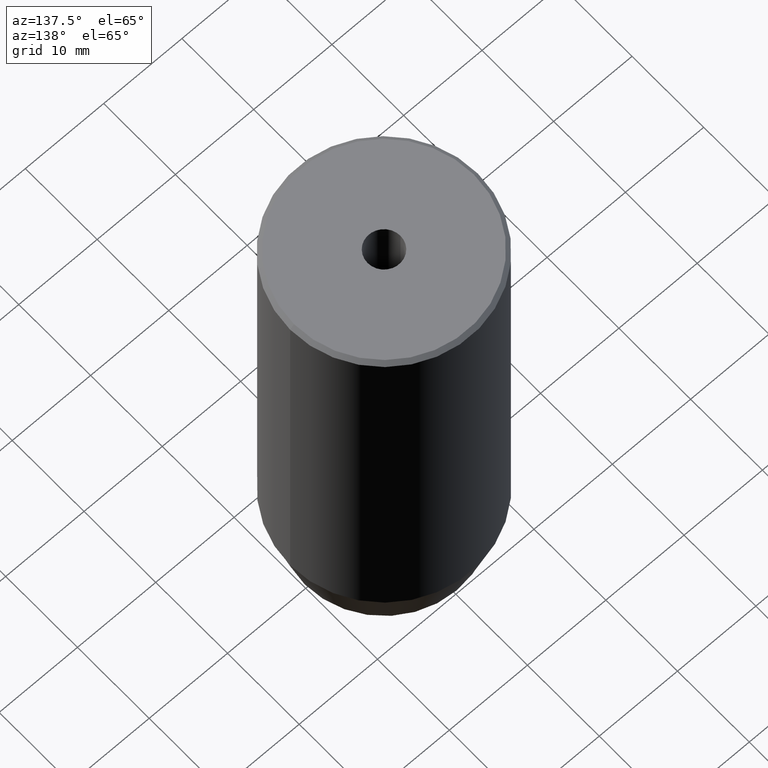
[diagram: clean part render]
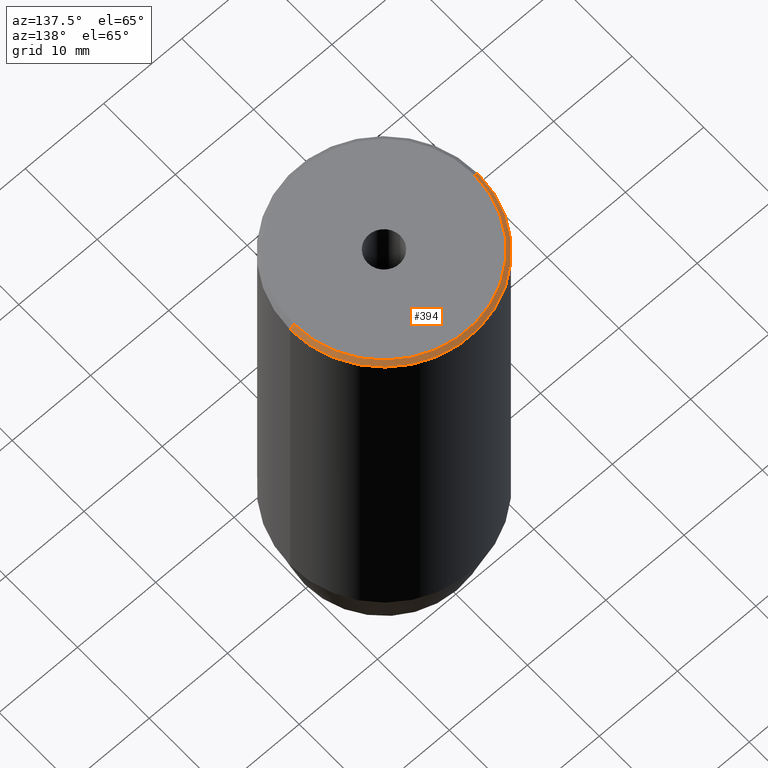
[diagram: same view with one face highlighted and labeled with its STEP entity id]
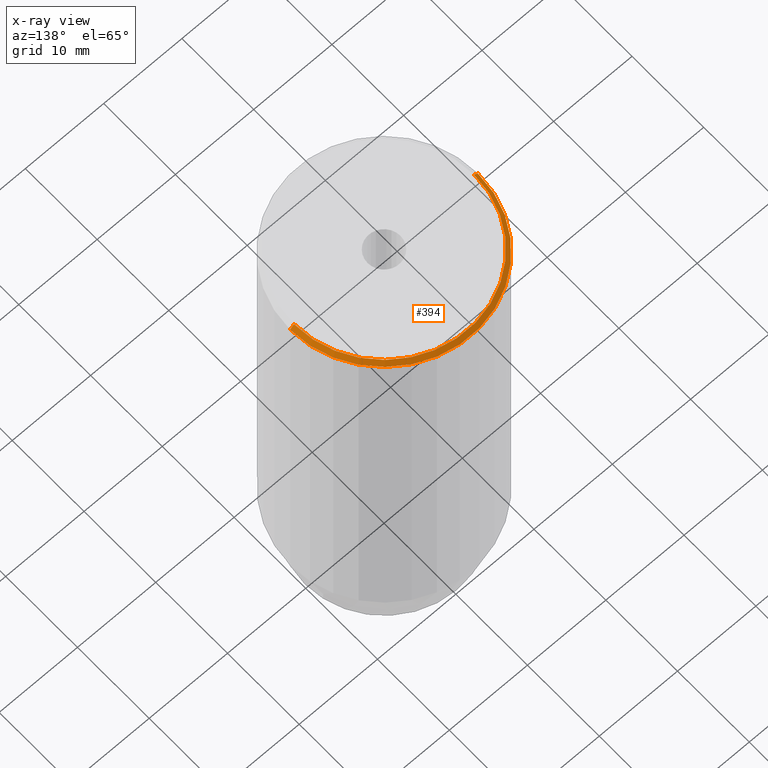
[diagram: x-ray of the same camera — body ghosted, the highlighted face saturated]
A machine part, auxiliary view. The second image highlights one B-rep face of the part: STEP entity #394.
The next image is the same camera in x-ray: the body ghosted, the highlighted face saturated — about 0% of this face is hidden behind the body in this view.
In plain terms, the highlighted conical surface has half-angle 45 deg.
Its self-contained STEP definition (entity closure, byte-faithful):
#6 = CONICAL_SURFACE ( 'NONE', #67, 11.49999999999998757, 0.7853981633974482790 ) ;
#35 = CIRCLE ( 'NONE', #228, 11.49999999999998757 ) ;
#54 = EDGE_CURVE ( 'NONE', #533, #262, #467, .T. ) ;
#67 = AXIS2_PLACEMENT_3D ( 'NONE', #158, #344, #291 ) ;
#111 = AXIS2_PLACEMENT_3D ( 'NONE', #357, #489, #224 ) ;
#113 = ORIENTED_EDGE ( 'NONE', *, *, #507, .F. ) ;
#151 = VECTOR ( 'NONE', #318, 1000.000000000000114 ) ;
#158 = CARTESIAN_POINT ( 'NONE',  ( 0.000000000000000000, 0.000000000000000000, 0.000000000000000000 ) ) ;
#171 = LINE ( 'NONE', #530, #200 ) ;
#200 = VECTOR ( 'NONE', #253, 1000.000000000000114 ) ;
#214 = LINE ( 'NONE', #528, #151 ) ;
#224 = DIRECTION ( 'NONE',  ( 1.000000000000000000, 0.000000000000000000, 0.000000000000000000 ) ) ;
#225 = DIRECTION ( 'NONE',  ( -0.000000000000000000, -0.000000000000000000, 1.000000000000000000 ) ) ;
#228 = AXIS2_PLACEMENT_3D ( 'NONE', #577, #225, #263 ) ;
#253 = DIRECTION ( 'NONE',  ( 0.7071067811865474617, 8.659560562354932858E-17, -0.7071067811865474617 ) ) ;
#262 = VERTEX_POINT ( 'NONE', #288 ) ;
#263 = DIRECTION ( 'NONE',  ( 1.000000000000000000, 0.000000000000000000, 0.000000000000000000 ) ) ;
#279 = ORIENTED_EDGE ( 'NONE', *, *, #553, .F. ) ;
#288 = CARTESIAN_POINT ( 'NONE',  ( 12.00000000000000000, 0.000000000000000000, -0.5000000000000125455 ) ) ;
#291 = DIRECTION ( 'NONE',  ( -1.000000000000000000, 0.000000000000000000, 0.000000000000000000 ) ) ;
#304 = FACE_OUTER_BOUND ( 'NONE', #452, .T. ) ;
#318 = DIRECTION ( 'NONE',  ( -0.7071067811865474617, 0.000000000000000000, -0.7071067811865474617 ) ) ;
#340 = ORIENTED_EDGE ( 'NONE', *, *, #54, .F. ) ;
#344 = DIRECTION ( 'NONE',  ( 0.000000000000000000, 0.000000000000000000, -1.000000000000000000 ) ) ;
#357 = CARTESIAN_POINT ( 'NONE',  ( 0.000000000000000000, 0.000000000000000000, -0.5000000000000125455 ) ) ;
#361 = VERTEX_POINT ( 'NONE', #426 ) ;
#394 = ADVANCED_FACE ( 'NONE', ( #304 ), #6, .T. ) ;
#426 = CARTESIAN_POINT ( 'NONE',  ( 11.49999999999998757, 1.438959988998139174E-15, 0.000000000000000000 ) ) ;
#444 = CARTESIAN_POINT ( 'NONE',  ( -12.00000000000000000, 1.469576158976823947E-15, -0.5000000000000125455 ) ) ;
#452 = EDGE_LOOP ( 'NONE', ( #279, #461, #340, #113 ) ) ;
#461 = ORIENTED_EDGE ( 'NONE', *, *, #564, .T. ) ;
#467 = CIRCLE ( 'NONE', #111, 12.00000000000000000 ) ;
#475 = VERTEX_POINT ( 'NONE', #480 ) ;
#480 = CARTESIAN_POINT ( 'NONE',  ( -11.49999999999998757, 0.000000000000000000, 0.000000000000000000 ) ) ;
#489 = DIRECTION ( 'NONE',  ( 0.000000000000000000, 0.000000000000000000, -1.000000000000000000 ) ) ;
#507 = EDGE_CURVE ( 'NONE', #475, #533, #214, .T. ) ;
#528 = CARTESIAN_POINT ( 'NONE',  ( -11.49999999999998757, 0.000000000000000000, 0.000000000000000000 ) ) ;
#530 = CARTESIAN_POINT ( 'NONE',  ( 11.49999999999998757, 1.408343819019454598E-15, 0.000000000000000000 ) ) ;
#533 = VERTEX_POINT ( 'NONE', #444 ) ;
#553 = EDGE_CURVE ( 'NONE', #361, #475, #35, .T. ) ;
#564 = EDGE_CURVE ( 'NONE', #361, #262, #171, .T. ) ;
#577 = CARTESIAN_POINT ( 'NONE',  ( 0.000000000000000000, 0.000000000000000000, 0.000000000000000000 ) ) ;